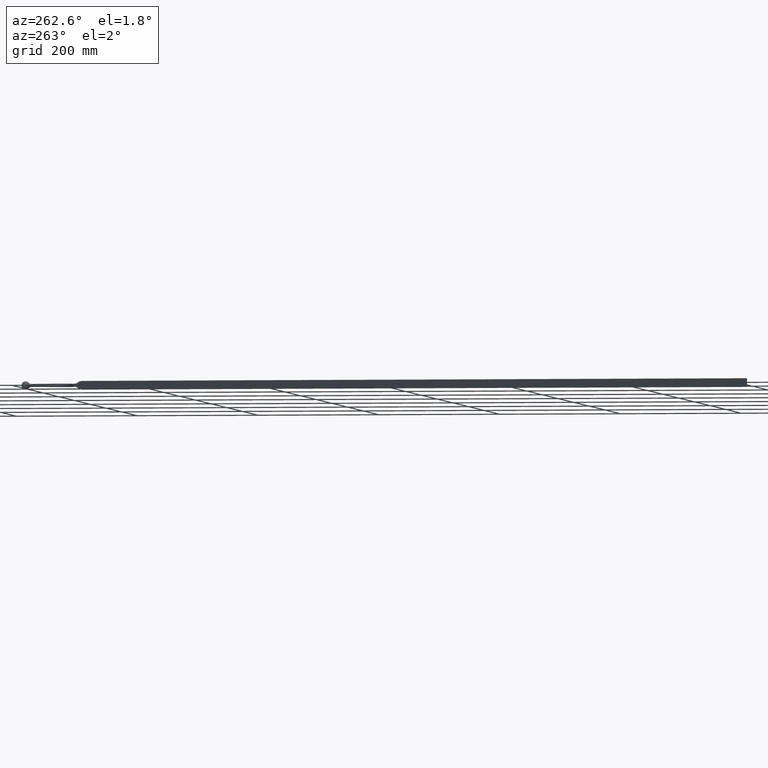
[diagram: clean part render]
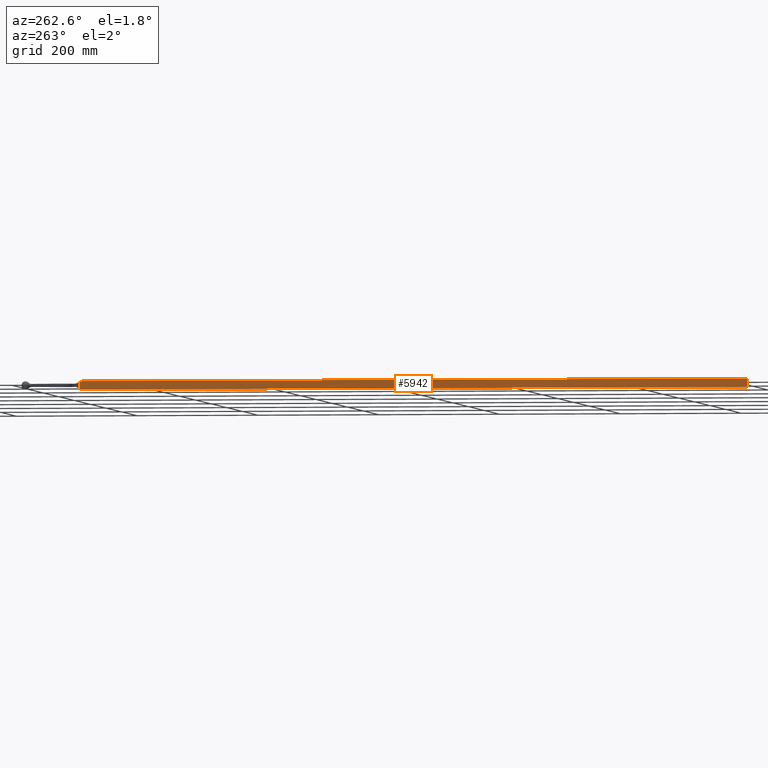
[diagram: same view with one face highlighted and labeled with its STEP entity id]
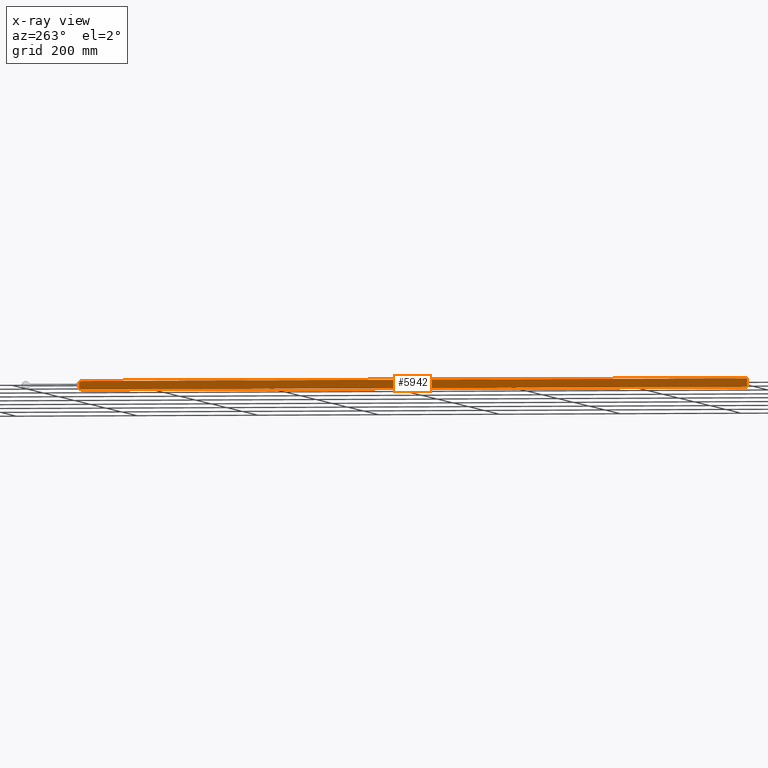
[diagram: x-ray of the same camera — body ghosted, the highlighted face saturated]
A machine part, auxiliary view. The second image highlights one B-rep face of the part: STEP entity #5942.
The next image is the same camera in x-ray: the body ghosted, the highlighted face saturated — about 0% of this face is hidden behind the body in this view.
In plain terms, the highlighted planar face has unit normal (1, 0, -0).
Its self-contained STEP definition (entity closure, byte-faithful):
#392 = VERTEX_POINT ( 'NONE', #10069 ) ;
#457 = ORIENTED_EDGE ( 'NONE', *, *, #6338, .F. ) ;
#581 = VERTEX_POINT ( 'NONE', #6307 ) ;
#599 = DIRECTION ( 'NONE',  ( -0.000000000000000000, -0.000000000000000000, 1.000000000000000000 ) ) ;
#638 = VERTEX_POINT ( 'NONE', #2536 ) ;
#845 = CARTESIAN_POINT ( 'NONE',  ( -7.000000000000002665, -6.614378277661474570, -4.999999999999998224 ) ) ;
#1038 = CIRCLE ( 'NONE', #12183, 8.000000000000000000 ) ;
#1779 = VECTOR ( 'NONE', #10843, 1000.000000000000000 ) ;
#1994 = VECTOR ( 'NONE', #599, 1000.000000000000000 ) ;
#2317 = LINE ( 'NONE', #4220, #7370 ) ;
#2536 = CARTESIAN_POINT ( 'NONE',  ( -7.000000000000002665, -11.90588089979065956, -6.999999999999999112 ) ) ;
#2647 = ORIENTED_EDGE ( 'NONE', *, *, #7401, .T. ) ;
#2737 = VECTOR ( 'NONE', #3713, 1000.000000000000000 ) ;
#2793 = EDGE_CURVE ( 'NONE', #638, #10098, #6034, .T. ) ;
#2881 = EDGE_CURVE ( 'NONE', #10372, #3245, #7808, .T. ) ;
#3066 = DIRECTION ( 'NONE',  ( 1.000000000000000000, 0.000000000000000000, -0.000000000000000000 ) ) ;
#3133 = CARTESIAN_POINT ( 'NONE',  ( -7.000000000000001776, -1112.000000000000000, 6.999999999999998224 ) ) ;
#3245 = VERTEX_POINT ( 'NONE', #8574 ) ;
#3523 = DIRECTION ( 'NONE',  ( 0.000000000000000000, 0.000000000000000000, -1.000000000000000000 ) ) ;
#3713 = DIRECTION ( 'NONE',  ( -0.000000000000000000, -0.000000000000000000, -1.000000000000000000 ) ) ;
#4220 = CARTESIAN_POINT ( 'NONE',  ( -7.000000000000001776, -1112.000000000000000, 6.999999999999998224 ) ) ;
#4633 = EDGE_CURVE ( 'NONE', #3245, #638, #4744, .T. ) ;
#4670 = DIRECTION ( 'NONE',  ( -1.000000000000000000, -0.000000000000000000, 0.000000000000000000 ) ) ;
#4744 = LINE ( 'NONE', #9004, #1779 ) ;
#5569 = CARTESIAN_POINT ( 'NONE',  ( -7.000000000000002665, -11.90588089979065956, 1.000000000000000888 ) ) ;
#5677 = DIRECTION ( 'NONE',  ( 0.000000000000000000, 0.000000000000000000, -1.000000000000000000 ) ) ;
#5884 = ORIENTED_EDGE ( 'NONE', *, *, #2881, .F. ) ;
#5942 = ADVANCED_FACE ( 'NONE', ( #11377 ), #7003, .F. ) ;
#6034 = CIRCLE ( 'NONE', #7355, 8.000000000000000000 ) ;
#6035 = AXIS2_PLACEMENT_3D ( 'NONE', #9212, #3066, #12146 ) ;
#6307 = CARTESIAN_POINT ( 'NONE',  ( -7.000000000000002665, -6.614378277661474570, 4.999999999999998224 ) ) ;
#6338 = EDGE_CURVE ( 'NONE', #10098, #581, #12384, .T. ) ;
#7003 = PLANE ( 'NONE',  #6035 ) ;
#7355 = AXIS2_PLACEMENT_3D ( 'NONE', #5569, #7603, #3523 ) ;
#7370 = VECTOR ( 'NONE', #12121, 1000.000000000000000 ) ;
#7401 = EDGE_CURVE ( 'NONE', #392, #581, #1038, .T. ) ;
#7603 = DIRECTION ( 'NONE',  ( 1.000000000000000000, 0.000000000000000000, -0.000000000000000000 ) ) ;
#7693 = EDGE_CURVE ( 'NONE', #10372, #392, #2317, .T. ) ;
#7808 = LINE ( 'NONE', #11686, #2737 ) ;
#8574 = CARTESIAN_POINT ( 'NONE',  ( -7.000000000000001776, -1112.000000000000000, -6.999999999999998224 ) ) ;
#8680 = CARTESIAN_POINT ( 'NONE',  ( -7.000000000000002665, -6.614378277661478123, -7.000000000000006217 ) ) ;
#9004 = CARTESIAN_POINT ( 'NONE',  ( -7.000000000000001776, -1112.000000000000000, -6.999999999999998224 ) ) ;
#9212 = CARTESIAN_POINT ( 'NONE',  ( -7.000000000000001776, -1112.000000000000000, -6.999999999999998224 ) ) ;
#9740 = ORIENTED_EDGE ( 'NONE', *, *, #2793, .F. ) ;
#10069 = CARTESIAN_POINT ( 'NONE',  ( -7.000000000000002665, -11.90588089979065956, 6.999999999999999112 ) ) ;
#10098 = VERTEX_POINT ( 'NONE', #845 ) ;
#10372 = VERTEX_POINT ( 'NONE', #3133 ) ;
#10721 = CARTESIAN_POINT ( 'NONE',  ( -7.000000000000002665, -11.90588089979065956, -1.000000000000000888 ) ) ;
#10843 = DIRECTION ( 'NONE',  ( -0.000000000000000000, 1.000000000000000000, -0.000000000000000000 ) ) ;
#11377 = FACE_OUTER_BOUND ( 'NONE', #11443, .T. ) ;
#11435 = ORIENTED_EDGE ( 'NONE', *, *, #4633, .F. ) ;
#11443 = EDGE_LOOP ( 'NONE', ( #2647, #457, #9740, #11435, #5884, #12874 ) ) ;
#11686 = CARTESIAN_POINT ( 'NONE',  ( -7.000000000000001776, -1112.000000000000000, -6.999999999999998224 ) ) ;
#12121 = DIRECTION ( 'NONE',  ( -0.000000000000000000, 1.000000000000000000, -0.000000000000000000 ) ) ;
#12146 = DIRECTION ( 'NONE',  ( -0.000000000000000000, 0.000000000000000000, -1.000000000000000000 ) ) ;
#12183 = AXIS2_PLACEMENT_3D ( 'NONE', #10721, #4670, #5677 ) ;
#12384 = LINE ( 'NONE', #8680, #1994 ) ;
#12874 = ORIENTED_EDGE ( 'NONE', *, *, #7693, .T. ) ;